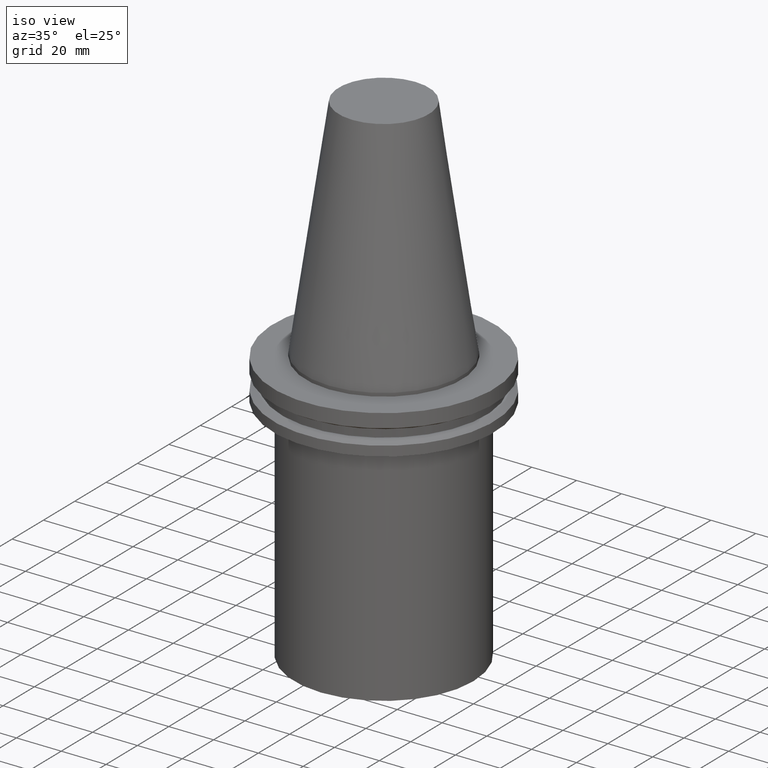
[diagram: clean part render]
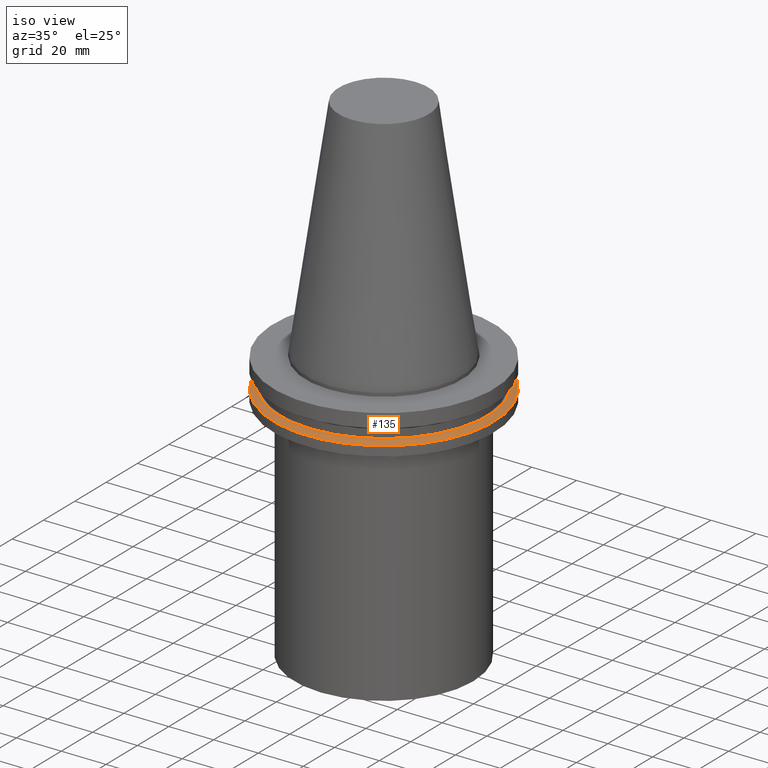
[diagram: same view with one face highlighted and labeled with its STEP entity id]
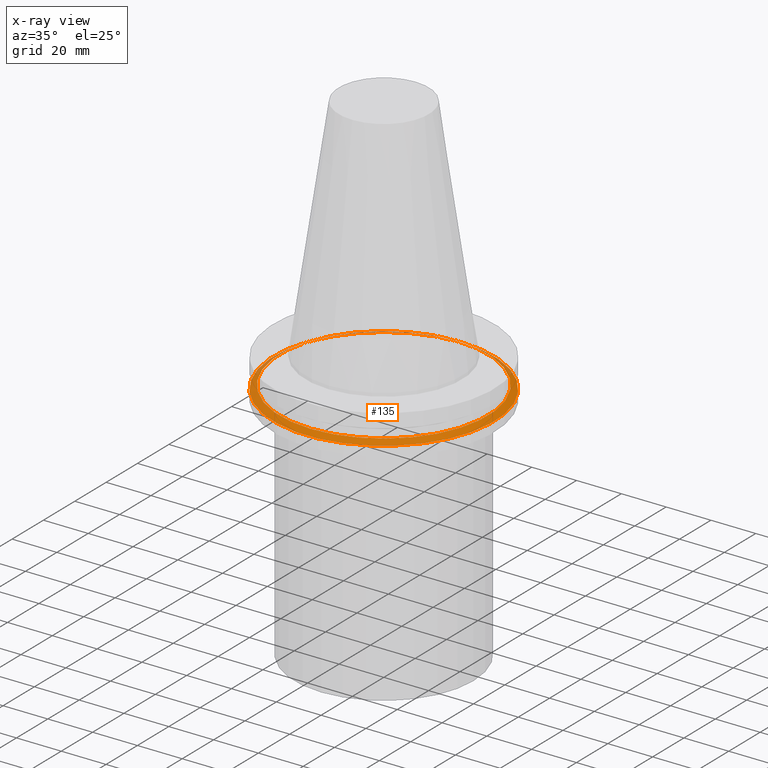
[diagram: x-ray of the same camera — body ghosted, the highlighted face saturated]
A machine part, iso view. The second image highlights one B-rep face of the part: STEP entity #135.
The next image is the same camera in x-ray: the body ghosted, the highlighted face saturated — about 9% of this face is hidden behind the body in this view.
In plain terms, the highlighted conical surface has half-angle 60 deg.
Its self-contained STEP definition (entity closure, byte-faithful):
#65=EDGE_CURVE('Unnamed[1]',#166,#166,#167,.T.);
#95=EDGE_CURVE('Unnamed[1]',#213,#213,#214,.T.);
#135=ADVANCED_FACE('Unnamed[1]',(#275,#276),#277,.T.);
#166=VERTEX_POINT('',#303);
#167=CIRCLE('',#304,46.43053755);
#213=VERTEX_POINT('',#362);
#214=CIRCLE('',#363,49.2125);
#275=FACE_BOUND('',#438,.T.);
#276=FACE_BOUND('',#439,.T.);
#277=CONICAL_SURFACE('',#440,47.821518775,1.04719755103023);
#303=CARTESIAN_POINT('',(7.98469713044073E-016,46.43053755,-13.04));
#304=AXIS2_PLACEMENT_3D('',#456,#457,#458);
#362=CARTESIAN_POINT('',(8.96819062732941E-016,49.2125,-14.64616677));
#363=AXIS2_PLACEMENT_3D('',#509,#510,#511);
#438=EDGE_LOOP('',(#577));
#439=EDGE_LOOP('',(#578));
#440=AXIS2_PLACEMENT_3D('',#579,#580,#581);
#456=CARTESIAN_POINT('',(7.98469713044074E-016,1.59693942608815E-015,-13.04));
#457=DIRECTION('',(6.12323399573677E-017,1.22464679914735E-016,-1.0));
#458=DIRECTION('',(-1.23259516440783E-032,1.0,1.22464679914735E-016));
#509=CARTESIAN_POINT('',(8.96819062732942E-016,1.79363812546588E-015,-14.64616677));
#510=DIRECTION('',(6.12323399573677E-017,1.22464679914735E-016,-1.0));
#511=DIRECTION('',(-1.23259516440783E-032,1.0,1.22464679914735E-016));
#577=ORIENTED_EDGE('',*,*,#95,.F.);
#578=ORIENTED_EDGE('',*,*,#65,.T.);
#579=CARTESIAN_POINT('',(8.47644387888508E-016,1.69528877577702E-015,-13.843083385));
#580=DIRECTION('',(6.12323399573677E-017,1.22464679914735E-016,-1.0));
#581=DIRECTION('',(-1.23259516440783E-032,1.0,1.22464679914735E-016));